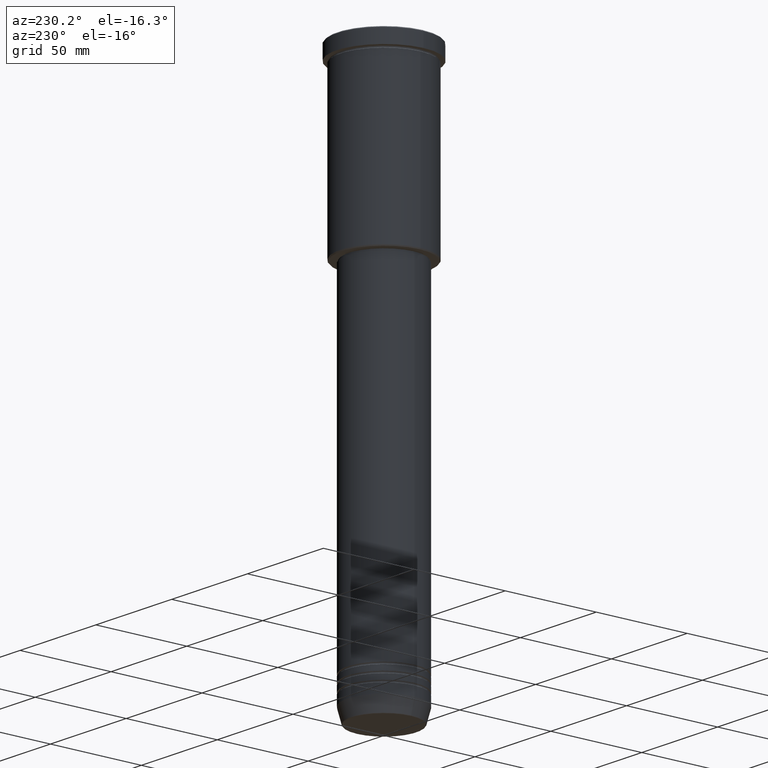
[diagram: clean part render]
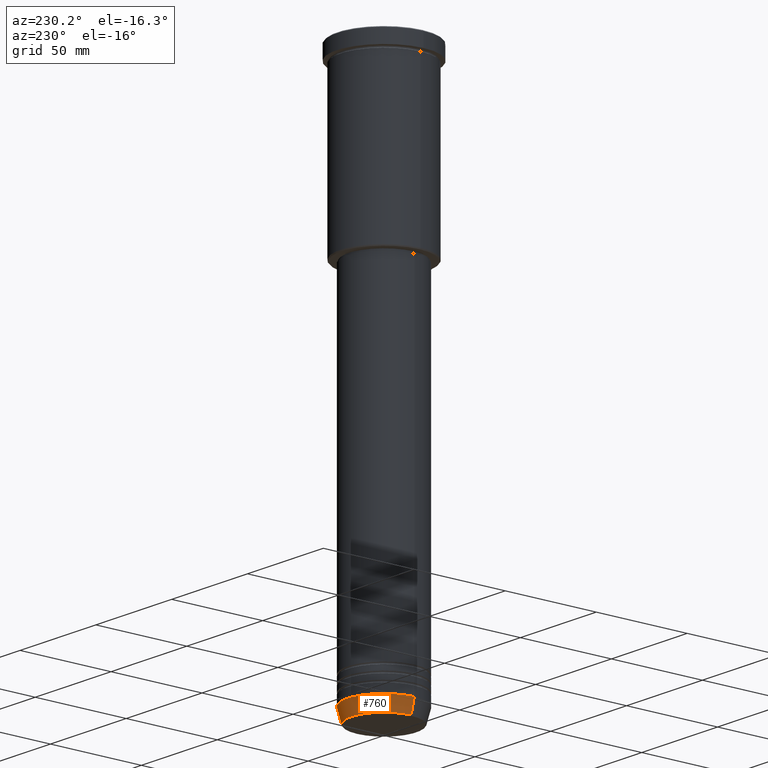
[diagram: same view with one face highlighted and labeled with its STEP entity id]
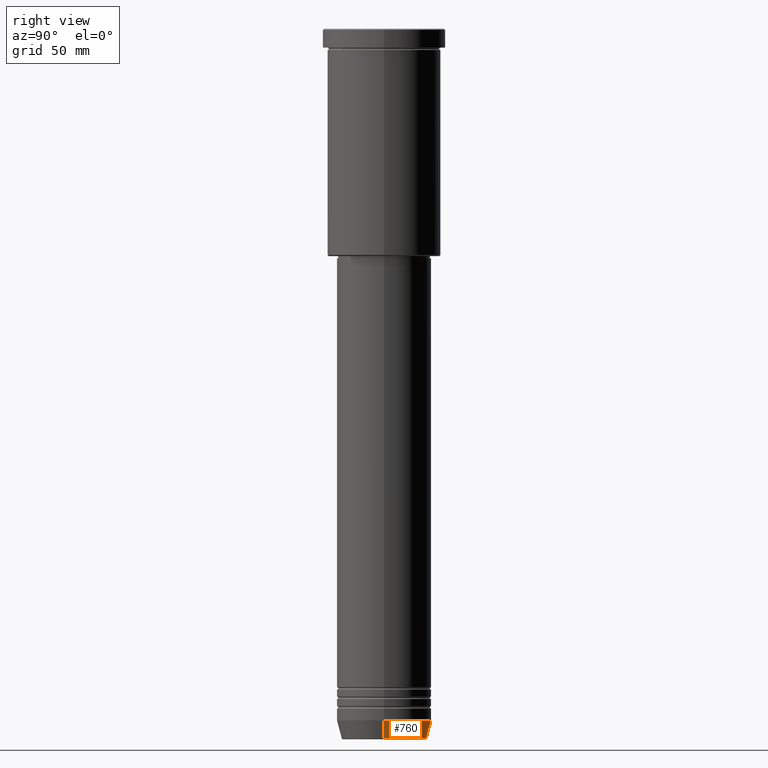
[diagram: same view with one face highlighted and labeled with its STEP entity id]
A machine part, auxiliary view. The second image highlights one B-rep face of the part: STEP entity #760.
A second angle (right view) of the same face is appended — the face is thin or edge-on in the first view.
In plain terms, the highlighted conical surface has half-angle 15 deg.
Its self-contained STEP definition (entity closure, byte-faithful):
#59 = VERTEX_POINT ( 'NONE', #568 ) ;
#80 = DIRECTION ( 'NONE',  ( 1.000000000000000000, 0.000000000000000000, 0.000000000000000000 ) ) ;
#113 = CARTESIAN_POINT ( 'NONE',  ( -17.95570587970608045, 2.324116685748021371E-15, -299.6294095225512137 ) ) ;
#138 = CARTESIAN_POINT ( 'NONE',  ( 0.000000000000000000, 0.000000000000000000, -292.0000000000000000 ) ) ;
#158 = ORIENTED_EDGE ( 'NONE', *, *, #1095, .T. ) ;
#180 = EDGE_CURVE ( 'NONE', #59, #430, #621, .T. ) ;
#200 = DIRECTION ( 'NONE',  ( 1.000000000000000000, 0.000000000000000000, 0.000000000000000000 ) ) ;
#212 = VECTOR ( 'NONE', #613, 1000.000000000000114 ) ;
#214 = LINE ( 'NONE', #1126, #212 ) ;
#324 = EDGE_LOOP ( 'NONE', ( #1010, #158, #756, #877 ) ) ;
#342 = AXIS2_PLACEMENT_3D ( 'NONE', #527, #448, #80 ) ;
#386 = CARTESIAN_POINT ( 'NONE',  ( -20.00000000000000355, 2.449293598294706907E-15, -292.0000000000000000 ) ) ;
#430 = VERTEX_POINT ( 'NONE', #514 ) ;
#448 = DIRECTION ( 'NONE',  ( -0.000000000000000000, -0.000000000000000000, 1.000000000000000000 ) ) ;
#449 = VERTEX_POINT ( 'NONE', #386 ) ;
#497 = EDGE_CURVE ( 'NONE', #59, #640, #722, .T. ) ;
#508 = DIRECTION ( 'NONE',  ( -0.000000000000000000, -0.000000000000000000, 1.000000000000000000 ) ) ;
#514 = CARTESIAN_POINT ( 'NONE',  ( 20.00000000000000355, 0.000000000000000000, -292.0000000000000000 ) ) ;
#527 = CARTESIAN_POINT ( 'NONE',  ( 0.000000000000000000, 0.000000000000000000, -292.0000000000000000 ) ) ;
#568 = CARTESIAN_POINT ( 'NONE',  ( 17.95570587970608045, 0.000000000000000000, -299.6294095225512137 ) ) ;
#593 = CARTESIAN_POINT ( 'NONE',  ( 0.000000000000000000, 0.000000000000000000, -299.6294095225512137 ) ) ;
#613 = DIRECTION ( 'NONE',  ( -0.2588190451025212391, 3.169619151431771721E-17, 0.9659258262890680902 ) ) ;
#621 = LINE ( 'NONE', #975, #1147 ) ;
#640 = VERTEX_POINT ( 'NONE', #113 ) ;
#695 = EDGE_CURVE ( 'NONE', #430, #449, #769, .T. ) ;
#722 = CIRCLE ( 'NONE', #813, 17.95570587970608045 ) ;
#756 = ORIENTED_EDGE ( 'NONE', *, *, #695, .F. ) ;
#760 = ADVANCED_FACE ( 'NONE', ( #954 ), #1123, .T. ) ;
#769 = CIRCLE ( 'NONE', #1170, 20.00000000000000355 ) ;
#813 = AXIS2_PLACEMENT_3D ( 'NONE', #593, #1128, #928 ) ;
#877 = ORIENTED_EDGE ( 'NONE', *, *, #180, .F. ) ;
#928 = DIRECTION ( 'NONE',  ( 1.000000000000000000, 0.000000000000000000, 0.000000000000000000 ) ) ;
#954 = FACE_OUTER_BOUND ( 'NONE', #324, .T. ) ;
#975 = CARTESIAN_POINT ( 'NONE',  ( 20.00000000000000355, 0.000000000000000000, -292.0000000000000000 ) ) ;
#997 = DIRECTION ( 'NONE',  ( 0.2588190451025212391, 0.000000000000000000, 0.9659258262890680902 ) ) ;
#1010 = ORIENTED_EDGE ( 'NONE', *, *, #497, .T. ) ;
#1095 = EDGE_CURVE ( 'NONE', #640, #449, #214, .T. ) ;
#1123 = CONICAL_SURFACE ( 'NONE', #342, 20.00000000000000355, 0.2617993877991499629 ) ;
#1126 = CARTESIAN_POINT ( 'NONE',  ( -20.00000000000000355, 2.449293598294706907E-15, -292.0000000000000000 ) ) ;
#1128 = DIRECTION ( 'NONE',  ( -0.000000000000000000, -0.000000000000000000, 1.000000000000000000 ) ) ;
#1147 = VECTOR ( 'NONE', #997, 1000.000000000000114 ) ;
#1170 = AXIS2_PLACEMENT_3D ( 'NONE', #138, #508, #200 ) ;